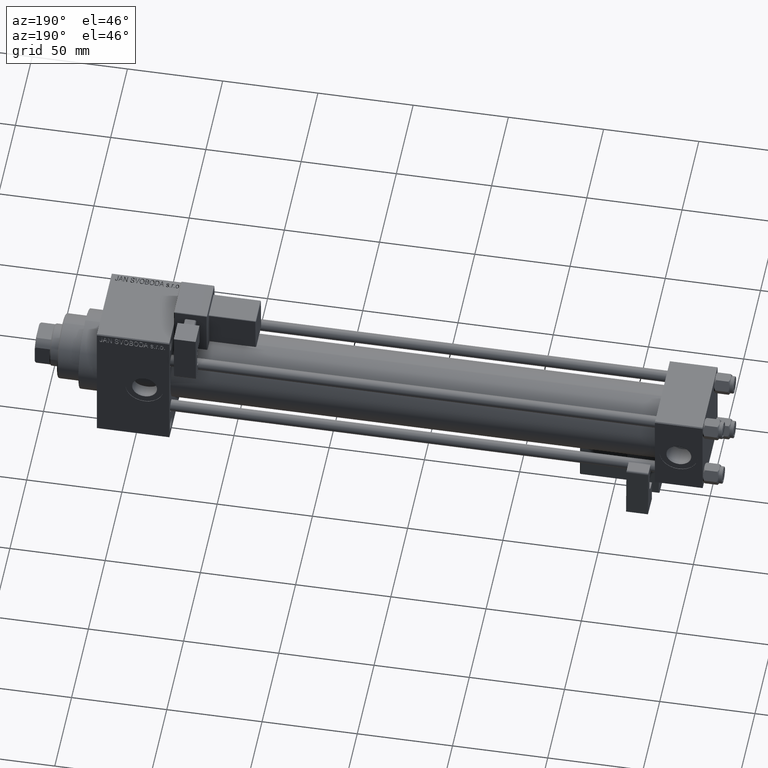
[diagram: clean part render]
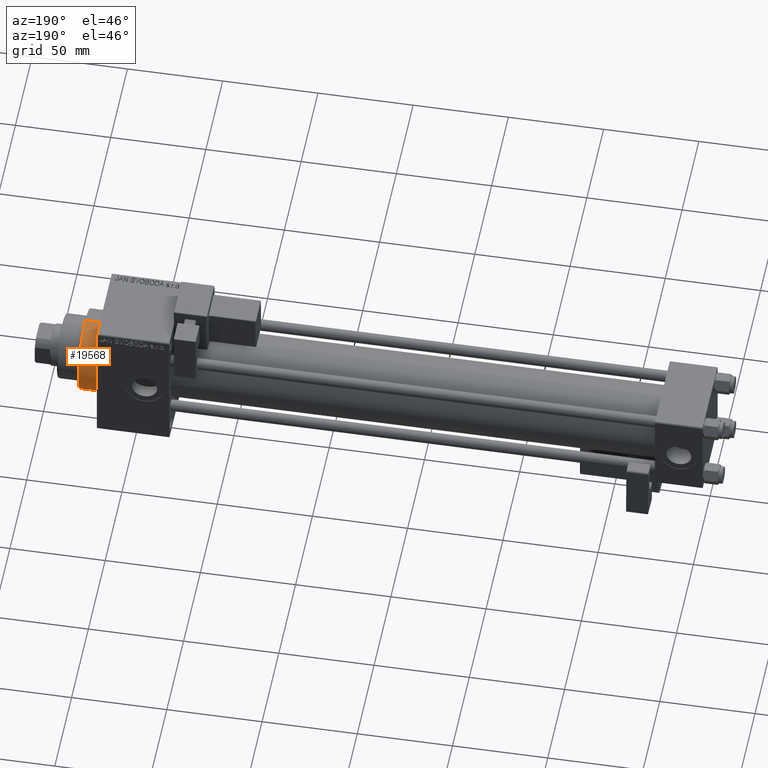
[diagram: same view with one face highlighted and labeled with its STEP entity id]
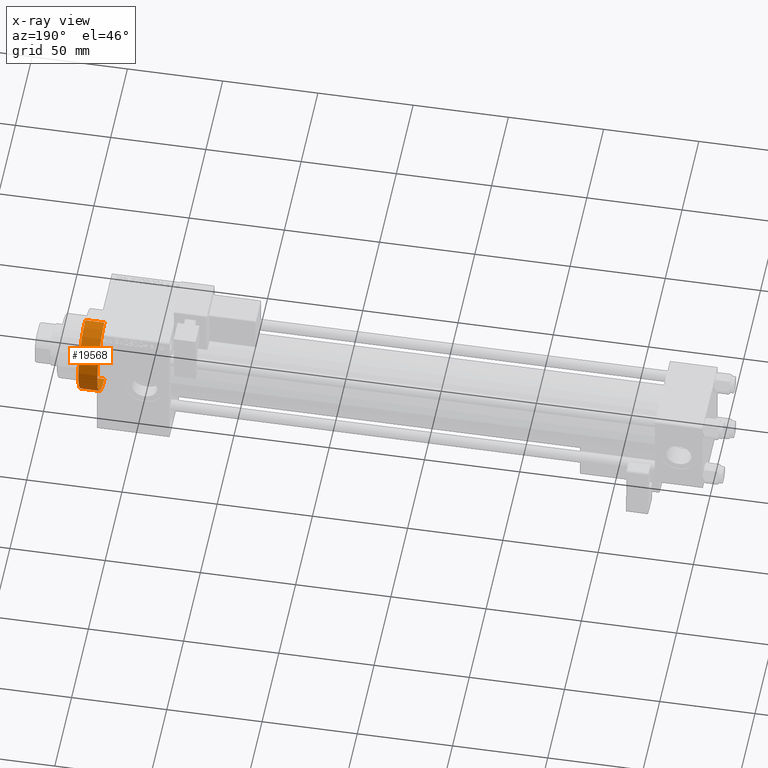
[diagram: x-ray of the same camera — body ghosted, the highlighted face saturated]
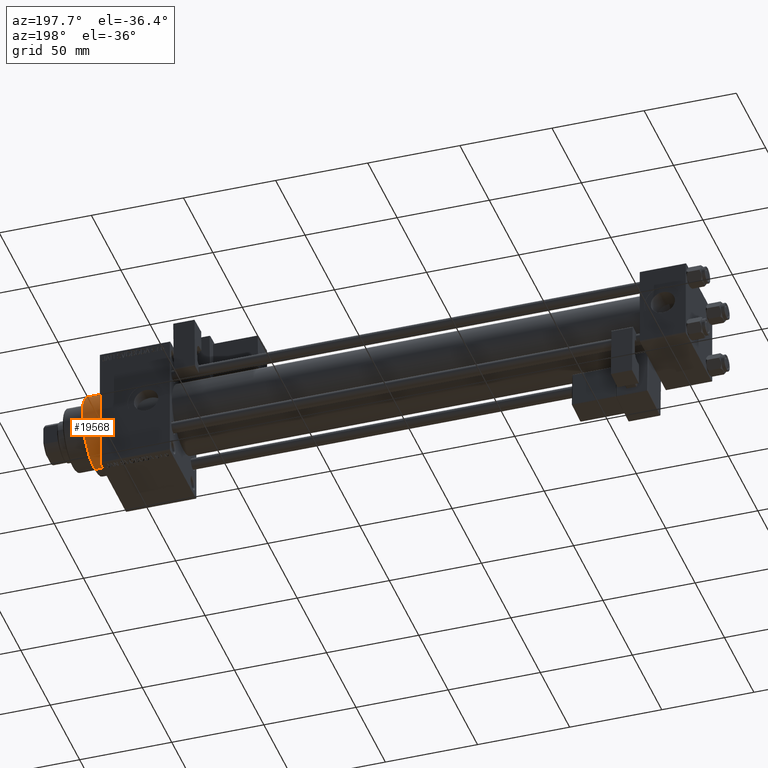
[diagram: same view with one face highlighted and labeled with its STEP entity id]
A machine part, auxiliary view. The second image highlights one B-rep face of the part: STEP entity #19568.
The next image is the same camera in x-ray: the body ghosted, the highlighted face saturated — about 0% of this face is hidden behind the body in this view.
A second angle (auxiliary view) of the same face is appended — the face is thin or edge-on in the first view.
In plain terms, the highlighted cylindrical surface (partial cylindrical patch) has radius 21 mm, axis along (-1, -0, -0).
Its self-contained STEP definition (entity closure, byte-faithful):
#533 = AXIS2_PLACEMENT_3D ( 'NONE', #30708, #43410, #50686 ) ;
#2643 = CARTESIAN_POINT ( 'NONE',  ( 328.0000000000000000, 0.000000000000000000, 21.00000000000000000 ) ) ;
#4812 = CARTESIAN_POINT ( 'NONE',  ( 318.0000000000000000, 0.000000000000000000, 21.00000000000000000 ) ) ;
#6011 = VERTEX_POINT ( 'NONE', #21444 ) ;
#9816 = AXIS2_PLACEMENT_3D ( 'NONE', #26449, #18392, #50071 ) ;
#14571 = CARTESIAN_POINT ( 'NONE',  ( 328.0000000000000000, 2.571758278209441661E-15, -21.00000000000000000 ) ) ;
#14579 = LINE ( 'NONE', #2643, #32354 ) ;
#16471 = AXIS2_PLACEMENT_3D ( 'NONE', #46637, #51033, #42736 ) ;
#17174 = VECTOR ( 'NONE', #23827, 1000.000000000000000 ) ;
#18392 = DIRECTION ( 'NONE',  ( -1.000000000000000000, -0.000000000000000000, -0.000000000000000000 ) ) ;
#19568 = ADVANCED_FACE ( 'NONE', ( #46193 ), #35005, .T. ) ;
#20500 = ORIENTED_EDGE ( 'NONE', *, *, #28790, .T. ) ;
#21444 = CARTESIAN_POINT ( 'NONE',  ( 318.0000000000000000, 2.571758278209441661E-15, -21.00000000000000000 ) ) ;
#21523 = ORIENTED_EDGE ( 'NONE', *, *, #38083, .F. ) ;
#23827 = DIRECTION ( 'NONE',  ( -1.000000000000000000, -0.000000000000000000, -0.000000000000000000 ) ) ;
#24777 = CIRCLE ( 'NONE', #16471, 21.00000000000000000 ) ;
#26449 = CARTESIAN_POINT ( 'NONE',  ( 328.0000000000000000, 0.000000000000000000, 0.000000000000000000 ) ) ;
#28790 = EDGE_CURVE ( 'NONE', #6011, #47127, #45299, .T. ) ;
#30438 = DIRECTION ( 'NONE',  ( -1.000000000000000000, -0.000000000000000000, -0.000000000000000000 ) ) ;
#30708 = CARTESIAN_POINT ( 'NONE',  ( 318.0000000000000000, 0.000000000000000000, 0.000000000000000000 ) ) ;
#32354 = VECTOR ( 'NONE', #30438, 1000.000000000000000 ) ;
#33208 = VERTEX_POINT ( 'NONE', #40163 ) ;
#33804 = ORIENTED_EDGE ( 'NONE', *, *, #34352, .T. ) ;
#34352 = EDGE_CURVE ( 'NONE', #33208, #6011, #43573, .T. ) ;
#35005 = CYLINDRICAL_SURFACE ( 'NONE', #9816, 21.00000000000000000 ) ;
#38083 = EDGE_CURVE ( 'NONE', #33208, #44316, #24777, .T. ) ;
#38626 = CARTESIAN_POINT ( 'NONE',  ( 328.0000000000000000, 0.000000000000000000, 21.00000000000000000 ) ) ;
#40163 = CARTESIAN_POINT ( 'NONE',  ( 328.0000000000000000, 2.571758278209441661E-15, -21.00000000000000000 ) ) ;
#42736 = DIRECTION ( 'NONE',  ( 0.000000000000000000, 0.000000000000000000, -1.000000000000000000 ) ) ;
#43410 = DIRECTION ( 'NONE',  ( 1.000000000000000000, 0.000000000000000000, 0.000000000000000000 ) ) ;
#43573 = LINE ( 'NONE', #14571, #17174 ) ;
#43576 = ORIENTED_EDGE ( 'NONE', *, *, #43742, .F. ) ;
#43742 = EDGE_CURVE ( 'NONE', #44316, #47127, #14579, .T. ) ;
#44316 = VERTEX_POINT ( 'NONE', #38626 ) ;
#45299 = CIRCLE ( 'NONE', #533, 21.00000000000000000 ) ;
#46193 = FACE_OUTER_BOUND ( 'NONE', #50191, .T. ) ;
#46637 = CARTESIAN_POINT ( 'NONE',  ( 328.0000000000000000, 0.000000000000000000, 0.000000000000000000 ) ) ;
#47127 = VERTEX_POINT ( 'NONE', #4812 ) ;
#50071 = DIRECTION ( 'NONE',  ( 0.000000000000000000, 0.000000000000000000, 1.000000000000000000 ) ) ;
#50191 = EDGE_LOOP ( 'NONE', ( #21523, #33804, #20500, #43576 ) ) ;
#50686 = DIRECTION ( 'NONE',  ( 0.000000000000000000, 0.000000000000000000, -1.000000000000000000 ) ) ;
#51033 = DIRECTION ( 'NONE',  ( 1.000000000000000000, 0.000000000000000000, 0.000000000000000000 ) ) ;